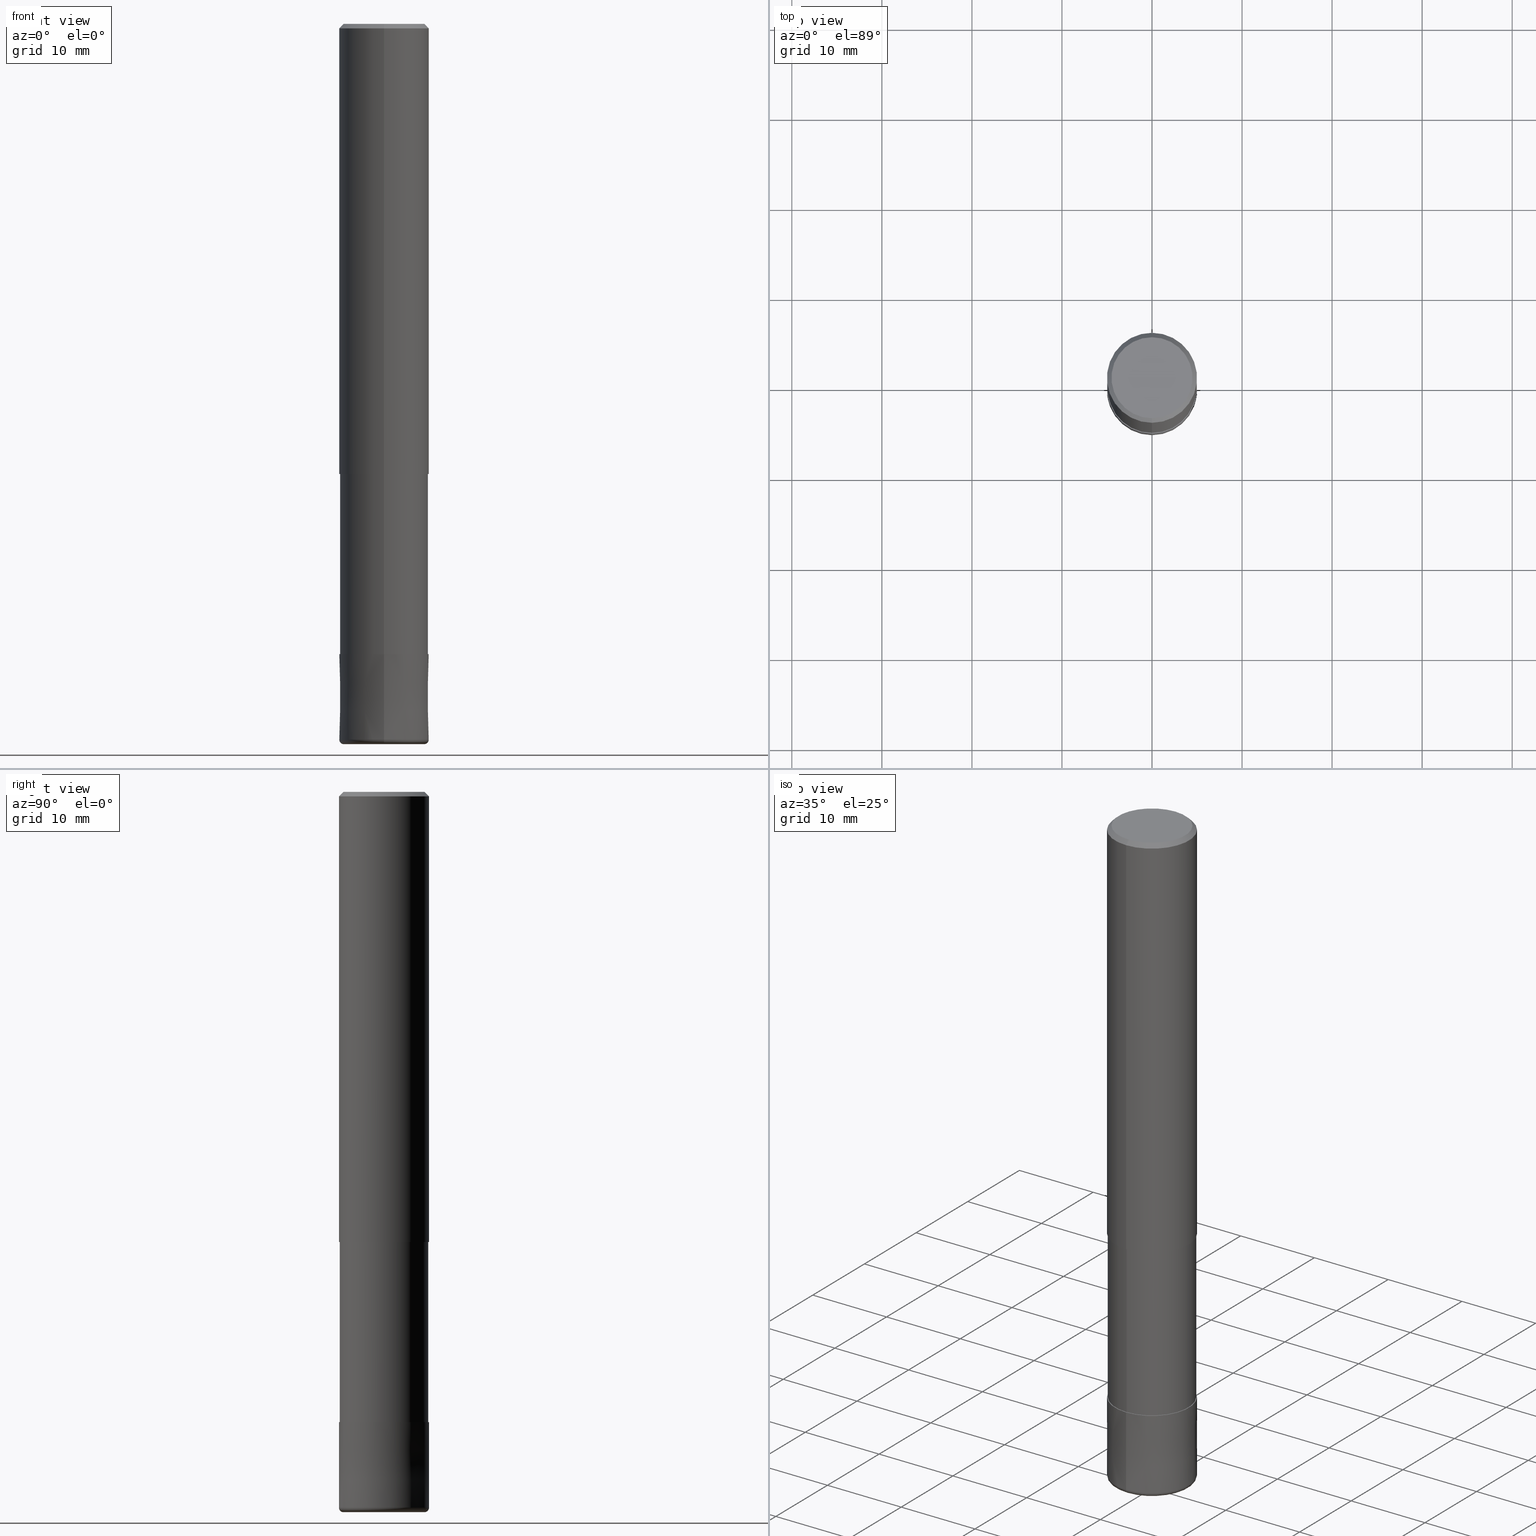
[diagram: canonical four-view strip — front | top / right | iso, engineering-drawing reading convention]
A machine part, canonical four-view strip (front | top / right | iso — engineering-drawing reading convention). The complete STEP part file that produces these views, byte-faithful:
ISO-10303-21;
HEADER;
FILE_DESCRIPTION(('no description'),'unknown implementation level');
FILE_NAME('CRRS4100-05-30-Huellk.stp','  ',('CIMSOURCE GmbH'),('CADClick - KiM GmbH - www.kimweb.de'),'unknown preprocess','ACIS','unknown authorization');
FILE_SCHEMA(('automotive_design'));
ENDSEC;
DATA;
#1=MECHANICAL_DESIGN_GEOMETRIC_PRESENTATION_REPRESENTATION(' ',(#14,#15,#16,#17,#18,#19,#20,#21,#22,#23,#24,#25,#26,#27,#28,#29,#30,#31,#32,#33,#34,#35,#36,#37,#38,#39,#40,#41,#42,#43,#44,#45,#46,#47,#48,#49,#50,#51,#52,#53,#54,#55,#56,#57,#58,#59,#60,#61,#62,#63,#64,#65,#66,#67,#68,#69,#70,#71,#72),#10);
#2=PRODUCT_DEFINITION_CONTEXT('',#73,'design');
#3=APPLICATION_PROTOCOL_DEFINITION('INTERNATIONAL STANDARD','automotive_design',1994,#73);
#4=PRODUCT_CATEGORY_RELATIONSHIP('NONE','NONE',#74,#75);
#5=SHAPE_DEFINITION_REPRESENTATION(#76,#77);
#6=PRODUCT_DEFINITION_CONTEXT('',#78,'design');
#7=APPLICATION_PROTOCOL_DEFINITION('INTERNATIONAL STANDARD','automotive_design',1994,#78);
#8=PRODUCT_CATEGORY_RELATIONSHIP('NONE','NONE',#79,#80);
#9=SHAPE_DEFINITION_REPRESENTATION(#81,#82);
#10= (GEOMETRIC_REPRESENTATION_CONTEXT(3)GLOBAL_UNCERTAINTY_ASSIGNED_CONTEXT((#85))GLOBAL_UNIT_ASSIGNED_CONTEXT((#87,#88,#89))REPRESENTATION_CONTEXT('NONE','WORKSPACE'));
#14=STYLED_ITEM('',(#91),#92);
#15=STYLED_ITEM('',(#93),#94);
#16=STYLED_ITEM('',(#95),#96);
#17=STYLED_ITEM('',(#97),#98);
#18=STYLED_ITEM('',(#99),#100);
#19=STYLED_ITEM('',(#101),#102);
#20=STYLED_ITEM('',(#103),#104);
#21=STYLED_ITEM('',(#105),#106);
#22=STYLED_ITEM('',(#107),#108);
#23=STYLED_ITEM('',(#109),#110);
#24=STYLED_ITEM('',(#111),#112);
#25=STYLED_ITEM('',(#113),#114);
#26=STYLED_ITEM('',(#115),#116);
#27=STYLED_ITEM('',(#117),#118);
#28=STYLED_ITEM('',(#119),#120);
#29=STYLED_ITEM('',(#121),#122);
#30=STYLED_ITEM('',(#123),#124);
#31=STYLED_ITEM('',(#125),#126);
#32=STYLED_ITEM('',(#127),#128);
#33=STYLED_ITEM('',(#129),#130);
#34=STYLED_ITEM('',(#131),#132);
#35=STYLED_ITEM('',(#133),#134);
#36=STYLED_ITEM('',(#135),#136);
#37=STYLED_ITEM('',(#137),#138);
#38=STYLED_ITEM('',(#139),#140);
#39=STYLED_ITEM('',(#141),#142);
#40=STYLED_ITEM('',(#143),#144);
#41=STYLED_ITEM('',(#145),#146);
#42=STYLED_ITEM('',(#147),#148);
#43=STYLED_ITEM('',(#149),#150);
#44=STYLED_ITEM('',(#151),#152);
#45=STYLED_ITEM('',(#153),#154);
#46=STYLED_ITEM('',(#155),#156);
#47=STYLED_ITEM('',(#157),#158);
#48=STYLED_ITEM('',(#159),#160);
#49=STYLED_ITEM('',(#161),#162);
#50=STYLED_ITEM('',(#163),#164);
#51=STYLED_ITEM('',(#165),#166);
#52=STYLED_ITEM('',(#167),#168);
#53=STYLED_ITEM('',(#169),#170);
#54=STYLED_ITEM('',(#171),#172);
#55=STYLED_ITEM('',(#173),#174);
#56=STYLED_ITEM('',(#175),#176);
#57=STYLED_ITEM('',(#177),#178);
#58=STYLED_ITEM('',(#179),#180);
#59=STYLED_ITEM('',(#181),#182);
#60=STYLED_ITEM('',(#183),#184);
#61=STYLED_ITEM('',(#185),#186);
#62=STYLED_ITEM('',(#187),#188);
#63=STYLED_ITEM('',(#189),#190);
#64=STYLED_ITEM('',(#191),#192);
#65=STYLED_ITEM('',(#193),#194);
#66=STYLED_ITEM('',(#195),#196);
#67=STYLED_ITEM('',(#197),#198);
#68=STYLED_ITEM('',(#199),#200);
#69=STYLED_ITEM('',(#201),#202);
#70=STYLED_ITEM('',(#203),#204);
#71=STYLED_ITEM('',(#205),#206);
#72=STYLED_ITEM('',(#207),#208);
#73=APPLICATION_CONTEXT(' ');
#74=PRODUCT_CATEGORY('part','NONE');
#75=PRODUCT_RELATED_PRODUCT_CATEGORY('detail',' ',(#209));
#76=PRODUCT_DEFINITION_SHAPE('NONE','NONE',#210);
#77=ADVANCED_BREP_SHAPE_REPRESENTATION('1',(#134,#211),#10);
#78=APPLICATION_CONTEXT(' ');
#79=PRODUCT_CATEGORY('part','NONE');
#80=PRODUCT_RELATED_PRODUCT_CATEGORY('detail',' ',(#212));
#81=PRODUCT_DEFINITION_SHAPE('NONE','NONE',#213);
#82=ADVANCED_BREP_SHAPE_REPRESENTATION('2',(#162,#214),#10);
#85=UNCERTAINTY_MEASURE_WITH_UNIT(LENGTH_MEASURE(1.0E-006),#87,'','');
#87= (CONVERSION_BASED_UNIT('MILLIMETRE',#217)LENGTH_UNIT()NAMED_UNIT(#220));
#88= (NAMED_UNIT(#222)PLANE_ANGLE_UNIT()SI_UNIT($,.RADIAN.));
#89= (NAMED_UNIT(#222)SOLID_ANGLE_UNIT()SI_UNIT($,.STERADIAN.));
#91=PRESENTATION_STYLE_ASSIGNMENT((#228));
#92=EDGE_CURVE('',#206,#102,#229,.T.);
#93=PRESENTATION_STYLE_ASSIGNMENT((#230));
#94=ADVANCED_FACE('',(#231),#232,.T.);
#95=PRESENTATION_STYLE_ASSIGNMENT((#233));
#96=EDGE_CURVE('',#172,#140,#234,.T.);
#97=PRESENTATION_STYLE_ASSIGNMENT((#235));
#98=VERTEX_POINT('',#236);
#99=PRESENTATION_STYLE_ASSIGNMENT((#237));
#100=VERTEX_POINT('',#238);
#101=PRESENTATION_STYLE_ASSIGNMENT((#239));
#102=VERTEX_POINT('',#240);
#103=PRESENTATION_STYLE_ASSIGNMENT((#241));
#104=VERTEX_POINT('',#242);
#105=PRESENTATION_STYLE_ASSIGNMENT((#243));
#106=ADVANCED_FACE('',(#244),#245,.T.);
#107=PRESENTATION_STYLE_ASSIGNMENT((#246));
#108=VERTEX_POINT('',#247);
#109=PRESENTATION_STYLE_ASSIGNMENT((#248));
#110=EDGE_CURVE('',#160,#104,#249,.T.);
#111=PRESENTATION_STYLE_ASSIGNMENT((#250));
#112=EDGE_CURVE('',#104,#160,#251,.T.);
#113=PRESENTATION_STYLE_ASSIGNMENT((#252));
#114=VERTEX_POINT('',#253);
#115=PRESENTATION_STYLE_ASSIGNMENT((#254));
#116=EDGE_CURVE('',#104,#208,#255,.T.);
#117=PRESENTATION_STYLE_ASSIGNMENT((#256));
#118=ADVANCED_FACE('',(#257),#258,.T.);
#119=PRESENTATION_STYLE_ASSIGNMENT((#259));
#120=EDGE_CURVE('',#208,#98,#260,.T.);
#121=PRESENTATION_STYLE_ASSIGNMENT((#261));
#122=ADVANCED_FACE('',(#262),#263,.T.);
#123=PRESENTATION_STYLE_ASSIGNMENT((#264));
#124=EDGE_CURVE('',#130,#108,#265,.T.);
#125=PRESENTATION_STYLE_ASSIGNMENT((#266));
#126=ADVANCED_FACE('',(#267),#268,.T.);
#127=PRESENTATION_STYLE_ASSIGNMENT((#269));
#128=VERTEX_POINT('',#270);
#129=PRESENTATION_STYLE_ASSIGNMENT((#271));
#130=VERTEX_POINT('',#272);
#131=PRESENTATION_STYLE_ASSIGNMENT((#273));
#132=EDGE_CURVE('',#136,#128,#274,.T.);
#133=PRESENTATION_STYLE_ASSIGNMENT((#275));
#134=MANIFOLD_SOLID_BREP('1',#276);
#135=PRESENTATION_STYLE_ASSIGNMENT((#277));
#136=VERTEX_POINT('',#278);
#137=PRESENTATION_STYLE_ASSIGNMENT((#279));
#138=VERTEX_POINT('',#280);
#139=PRESENTATION_STYLE_ASSIGNMENT((#281));
#140=VERTEX_POINT('',#282);
#141=PRESENTATION_STYLE_ASSIGNMENT((#283));
#142=EDGE_CURVE('',#108,#130,#284,.T.);
#143=PRESENTATION_STYLE_ASSIGNMENT((#285));
#144=ADVANCED_FACE('',(#286),#287,.T.);
#145=PRESENTATION_STYLE_ASSIGNMENT((#288));
#146=ADVANCED_FACE('',(#289),#290,.T.);
#147=PRESENTATION_STYLE_ASSIGNMENT((#291));
#148=EDGE_CURVE('',#130,#138,#292,.T.);
#149=PRESENTATION_STYLE_ASSIGNMENT((#293));
#150=EDGE_CURVE('',#100,#158,#294,.T.);
#151=PRESENTATION_STYLE_ASSIGNMENT((#295));
#152=EDGE_CURVE('',#102,#208,#296,.T.);
#153=PRESENTATION_STYLE_ASSIGNMENT((#297));
#154=EDGE_CURVE('',#140,#172,#298,.T.);
#155=PRESENTATION_STYLE_ASSIGNMENT((#299));
#156=EDGE_CURVE('',#128,#172,#300,.T.);
#157=PRESENTATION_STYLE_ASSIGNMENT((#301));
#158=VERTEX_POINT('',#302);
#159=PRESENTATION_STYLE_ASSIGNMENT((#303));
#160=VERTEX_POINT('',#304);
#161=PRESENTATION_STYLE_ASSIGNMENT((#305));
#162=MANIFOLD_SOLID_BREP('2',#306);
#163=PRESENTATION_STYLE_ASSIGNMENT((#307));
#164=ADVANCED_FACE('',(#308),#309,.T.);
#165=PRESENTATION_STYLE_ASSIGNMENT((#310));
#166=EDGE_CURVE('',#138,#100,#311,.T.);
#167=PRESENTATION_STYLE_ASSIGNMENT((#312));
#168=ADVANCED_FACE('',(#313),#314,.T.);
#169=PRESENTATION_STYLE_ASSIGNMENT((#315));
#170=EDGE_CURVE('',#114,#108,#316,.T.);
#171=PRESENTATION_STYLE_ASSIGNMENT((#317));
#172=VERTEX_POINT('',#318);
#173=PRESENTATION_STYLE_ASSIGNMENT((#319));
#174=EDGE_CURVE('',#138,#114,#320,.T.);
#175=PRESENTATION_STYLE_ASSIGNMENT((#321));
#176=ADVANCED_FACE('',(#322),#323,.T.);
#177=PRESENTATION_STYLE_ASSIGNMENT((#324));
#178=EDGE_CURVE('',#158,#100,#325,.T.);
#179=PRESENTATION_STYLE_ASSIGNMENT((#326));
#180=EDGE_CURVE('',#114,#138,#327,.T.);
#181=PRESENTATION_STYLE_ASSIGNMENT((#328));
#182=EDGE_CURVE('',#98,#208,#329,.T.);
#183=PRESENTATION_STYLE_ASSIGNMENT((#330));
#184=ADVANCED_FACE('',(#331,#332),#333,.T.);
#185=PRESENTATION_STYLE_ASSIGNMENT((#334));
#186=ADVANCED_FACE('',(#335),#336,.T.);
#187=PRESENTATION_STYLE_ASSIGNMENT((#337));
#188=EDGE_CURVE('',#98,#160,#338,.T.);
#189=PRESENTATION_STYLE_ASSIGNMENT((#339));
#190=EDGE_CURVE('',#158,#114,#340,.T.);
#191=PRESENTATION_STYLE_ASSIGNMENT((#341));
#192=EDGE_CURVE('',#102,#206,#342,.T.);
#193=PRESENTATION_STYLE_ASSIGNMENT((#343));
#194=ADVANCED_FACE('',(#344),#345,.T.);
#195=PRESENTATION_STYLE_ASSIGNMENT((#346));
#196=ADVANCED_FACE('',(#347),#348,.T.);
#197=PRESENTATION_STYLE_ASSIGNMENT((#349));
#198=ADVANCED_FACE('',(#350),#351,.T.);
#199=PRESENTATION_STYLE_ASSIGNMENT((#352));
#200=EDGE_CURVE('',#140,#136,#353,.T.);
#201=PRESENTATION_STYLE_ASSIGNMENT((#354));
#202=EDGE_CURVE('',#98,#206,#355,.T.);
#203=PRESENTATION_STYLE_ASSIGNMENT((#356));
#204=EDGE_CURVE('',#128,#136,#357,.T.);
#205=PRESENTATION_STYLE_ASSIGNMENT((#358));
#206=VERTEX_POINT('',#359);
#207=PRESENTATION_STYLE_ASSIGNMENT((#360));
#208=VERTEX_POINT('',#361);
#209=PRODUCT('1','1','PART-1-DESC',(#362));
#210=PRODUCT_DEFINITION('NONE','NONE',#363,#2);
#211=AXIS2_PLACEMENT_3D('',#364,#365,#366);
#212=PRODUCT('2','2','PART-2-DESC',(#367));
#213=PRODUCT_DEFINITION('NONE','NONE',#368,#6);
#214=AXIS2_PLACEMENT_3D('',#369,#370,#371);
#217=LENGTH_MEASURE_WITH_UNIT(LENGTH_MEASURE(1.0),#372);
#220=DIMENSIONAL_EXPONENTS(1.0,0.0,0.0,0.0,0.0,0.0,0.0);
#222=DIMENSIONAL_EXPONENTS(0.0,0.0,0.0,0.0,0.0,0.0,0.0);
#228=CURVE_STYLE('',#373,POSITIVE_LENGTH_MEASURE(1.0E-006),#374);
#229=CIRCLE('',#375,4.5);
#230=SURFACE_STYLE_USAGE(.BOTH.,#376);
#231=FACE_OUTER_BOUND('',#377,.T.);
#232=TOROIDAL_SURFACE('',#378,4.5,0.499999999999995);
#233=CURVE_STYLE('',#379,POSITIVE_LENGTH_MEASURE(1.0E-006),#380);
#234=CIRCLE('',#381,4.90995);
#235=POINT_STYLE(' ',#382,POSITIVE_LENGTH_MEASURE(1.0E-006),#383);
#236=CARTESIAN_POINT('',(6.12303176911189E-016,-5.0,-79.5));
#237=POINT_STYLE(' ',#384,POSITIVE_LENGTH_MEASURE(1.0E-006),#385);
#238=CARTESIAN_POINT('',(0.0,5.0,-50.0));
#239=POINT_STYLE(' ',#386,POSITIVE_LENGTH_MEASURE(1.0E-006),#387);
#240=CARTESIAN_POINT('',(0.0,4.5,-80.0));
#241=POINT_STYLE(' ',#388,POSITIVE_LENGTH_MEASURE(1.0E-006),#389);
#242=CARTESIAN_POINT('',(0.0,4.9999,-70.0));
#243=SURFACE_STYLE_USAGE(.BOTH.,#390);
#244=FACE_OUTER_BOUND('',#391,.T.);
#245=CONICAL_SURFACE('',#392,4.99995,1.05263157890604E-005);
#246=POINT_STYLE(' ',#393,POSITIVE_LENGTH_MEASURE(1.0E-006),#394);
#247=CARTESIAN_POINT('',(5.5107285922007E-016,-4.5,0.0));
#248=CURVE_STYLE('',#395,POSITIVE_LENGTH_MEASURE(1.0E-006),#396);
#249=CIRCLE('',#397,4.9999);
#250=CURVE_STYLE('',#398,POSITIVE_LENGTH_MEASURE(1.0E-006),#399);
#251=CIRCLE('',#400,4.9999);
#252=POINT_STYLE(' ',#401,POSITIVE_LENGTH_MEASURE(1.0E-006),#402);
#253=CARTESIAN_POINT('',(6.12303176911189E-016,-5.0,-0.5));
#254=CURVE_STYLE('',#403,POSITIVE_LENGTH_MEASURE(1.0E-006),#404);
#255=LINE('',#405,#406);
#256=SURFACE_STYLE_USAGE(.BOTH.,#407);
#257=FACE_OUTER_BOUND('',#408,.T.);
#258=PLANE('',#409);
#259=CURVE_STYLE('',#410,POSITIVE_LENGTH_MEASURE(1.0E-006),#411);
#260=CIRCLE('',#412,5.0);
#261=SURFACE_STYLE_USAGE(.BOTH.,#413);
#262=FACE_OUTER_BOUND('',#414,.T.);
#263=PLANE('',#415);
#264=CURVE_STYLE('',#416,POSITIVE_LENGTH_MEASURE(1.0E-006),#417);
#265=CIRCLE('',#418,4.5);
#266=SURFACE_STYLE_USAGE(.BOTH.,#419);
#267=FACE_OUTER_BOUND('',#420,.T.);
#268=CYLINDRICAL_SURFACE('',#421,4.90995);
#269=POINT_STYLE(' ',#422,POSITIVE_LENGTH_MEASURE(1.0E-006),#423);
#270=CARTESIAN_POINT('',(6.01275596695018E-016,-4.90995,-70.0));
#271=POINT_STYLE(' ',#424,POSITIVE_LENGTH_MEASURE(1.0E-006),#425);
#272=CARTESIAN_POINT('',(0.0,4.5,0.0));
#273=CURVE_STYLE('',#426,POSITIVE_LENGTH_MEASURE(1.0E-006),#427);
#274=CIRCLE('',#428,4.90995);
#275=SURFACE_STYLE_USAGE(.BOTH.,#429);
#276=CLOSED_SHELL('',(#186,#176,#168,#184,#164,#198,#194,#126,#122));
#277=POINT_STYLE(' ',#430,POSITIVE_LENGTH_MEASURE(1.0E-006),#431);
#278=CARTESIAN_POINT('',(0.0,4.90995,-70.0));
#279=POINT_STYLE(' ',#432,POSITIVE_LENGTH_MEASURE(1.0E-006),#433);
#280=CARTESIAN_POINT('',(0.0,5.0,-0.5));
#281=POINT_STYLE(' ',#434,POSITIVE_LENGTH_MEASURE(1.0E-006),#435);
#282=CARTESIAN_POINT('',(0.0,4.90995,-50.0));
#283=CURVE_STYLE('',#436,POSITIVE_LENGTH_MEASURE(1.0E-006),#437);
#284=CIRCLE('',#438,4.5);
#285=SURFACE_STYLE_USAGE(.BOTH.,#439);
#286=FACE_OUTER_BOUND('',#440,.T.);
#287=CONICAL_SURFACE('',#441,4.99995,1.05263157890604E-005);
#288=SURFACE_STYLE_USAGE(.BOTH.,#442);
#289=FACE_OUTER_BOUND('',#443,.T.);
#290=PLANE('',#444);
#291=CURVE_STYLE('',#445,POSITIVE_LENGTH_MEASURE(1.0E-006),#446);
#292=LINE('',#447,#448);
#293=CURVE_STYLE('',#449,POSITIVE_LENGTH_MEASURE(1.0E-006),#450);
#294=CIRCLE('',#451,5.0);
#295=CURVE_STYLE('',#452,POSITIVE_LENGTH_MEASURE(1.0E-006),#453);
#296=CIRCLE('',#454,0.499999999999995);
#297=CURVE_STYLE('',#455,POSITIVE_LENGTH_MEASURE(1.0E-006),#456);
#298=CIRCLE('',#457,4.90995);
#299=CURVE_STYLE('',#458,POSITIVE_LENGTH_MEASURE(1.0E-006),#459);
#300=LINE('',#460,#461);
#301=POINT_STYLE(' ',#462,POSITIVE_LENGTH_MEASURE(1.0E-006),#463);
#302=CARTESIAN_POINT('',(6.12303176911189E-016,-5.0,-50.0));
#303=POINT_STYLE(' ',#464,POSITIVE_LENGTH_MEASURE(1.0E-006),#465);
#304=CARTESIAN_POINT('',(6.1229093084765E-016,-4.9999,-70.0));
#305=SURFACE_STYLE_USAGE(.BOTH.,#466);
#306=CLOSED_SHELL('',(#94,#106,#118,#144,#196,#146));
#307=SURFACE_STYLE_USAGE(.BOTH.,#467);
#308=FACE_OUTER_BOUND('',#468,.T.);
#309=PLANE('',#469);
#310=CURVE_STYLE('',#470,POSITIVE_LENGTH_MEASURE(1.0E-006),#471);
#311=LINE('',#472,#473);
#312=SURFACE_STYLE_USAGE(.BOTH.,#474);
#313=FACE_OUTER_BOUND('',#475,.T.);
#314=CONICAL_SURFACE('',#476,4.75,0.785398163397448);
#315=CURVE_STYLE('',#477,POSITIVE_LENGTH_MEASURE(1.0E-006),#478);
#316=LINE('',#479,#480);
#317=POINT_STYLE(' ',#481,POSITIVE_LENGTH_MEASURE(1.0E-006),#482);
#318=CARTESIAN_POINT('',(6.01275596695018E-016,-4.90995,-50.0));
#319=CURVE_STYLE('',#483,POSITIVE_LENGTH_MEASURE(1.0E-006),#484);
#320=CIRCLE('',#485,5.0);
#321=SURFACE_STYLE_USAGE(.BOTH.,#486);
#322=FACE_OUTER_BOUND('',#487,.T.);
#323=CYLINDRICAL_SURFACE('',#488,5.0);
#324=CURVE_STYLE('',#489,POSITIVE_LENGTH_MEASURE(1.0E-006),#490);
#325=CIRCLE('',#491,5.0);
#326=CURVE_STYLE('',#492,POSITIVE_LENGTH_MEASURE(1.0E-006),#493);
#327=CIRCLE('',#494,5.0);
#328=CURVE_STYLE('',#495,POSITIVE_LENGTH_MEASURE(1.0E-006),#496);
#329=CIRCLE('',#497,5.0);
#330=SURFACE_STYLE_USAGE(.BOTH.,#498);
#331=FACE_OUTER_BOUND('',#499,.T.);
#332=FACE_BOUND('',#500,.T.);
#333=PLANE('',#501);
#334=SURFACE_STYLE_USAGE(.BOTH.,#502);
#335=FACE_OUTER_BOUND('',#503,.T.);
#336=CYLINDRICAL_SURFACE('',#504,4.90995);
#337=CURVE_STYLE('',#505,POSITIVE_LENGTH_MEASURE(1.0E-006),#506);
#338=LINE('',#507,#508);
#339=CURVE_STYLE('',#509,POSITIVE_LENGTH_MEASURE(1.0E-006),#510);
#340=LINE('',#511,#512);
#341=CURVE_STYLE('',#513,POSITIVE_LENGTH_MEASURE(1.0E-006),#514);
#342=CIRCLE('',#515,4.5);
#343=SURFACE_STYLE_USAGE(.BOTH.,#516);
#344=FACE_OUTER_BOUND('',#517,.T.);
#345=CYLINDRICAL_SURFACE('',#518,5.0);
#346=SURFACE_STYLE_USAGE(.BOTH.,#519);
#347=FACE_OUTER_BOUND('',#520,.T.);
#348=TOROIDAL_SURFACE('',#521,4.5,0.499999999999995);
#349=SURFACE_STYLE_USAGE(.BOTH.,#522);
#350=FACE_OUTER_BOUND('',#523,.T.);
#351=CONICAL_SURFACE('',#524,4.75,0.785398163397448);
#352=CURVE_STYLE('',#525,POSITIVE_LENGTH_MEASURE(1.0E-006),#526);
#353=LINE('',#527,#528);
#354=CURVE_STYLE('',#529,POSITIVE_LENGTH_MEASURE(1.0E-006),#530);
#355=CIRCLE('',#531,0.499999999999995);
#356=CURVE_STYLE('',#532,POSITIVE_LENGTH_MEASURE(1.0E-006),#533);
#357=CIRCLE('',#534,4.90995);
#358=POINT_STYLE(' ',#535,POSITIVE_LENGTH_MEASURE(1.0E-006),#536);
#359=CARTESIAN_POINT('',(5.5107285922007E-016,-4.5,-80.0));
#360=POINT_STYLE(' ',#537,POSITIVE_LENGTH_MEASURE(1.0E-006),#538);
#361=CARTESIAN_POINT('',(0.0,5.0,-79.5));
#362=PRODUCT_CONTEXT('',#73,'mechanical');
#363=PRODUCT_DEFINITION_FORMATION_WITH_SPECIFIED_SOURCE(' ','NONE',#209,.NOT_KNOWN.);
#364=CARTESIAN_POINT('',(0.0,0.0,0.0));
#365=DIRECTION('',(0.0,0.0,1.0));
#366=DIRECTION('',(1.0,0.0,0.0));
#367=PRODUCT_CONTEXT('',#78,'mechanical');
#368=PRODUCT_DEFINITION_FORMATION_WITH_SPECIFIED_SOURCE(' ','NONE',#212,.NOT_KNOWN.);
#369=CARTESIAN_POINT('',(0.0,0.0,0.0));
#370=DIRECTION('',(0.0,0.0,1.0));
#371=DIRECTION('',(1.0,0.0,0.0));
#372= (NAMED_UNIT(#220)LENGTH_UNIT()SI_UNIT(.MILLI.,.METRE.));
#373=DRAUGHTING_PRE_DEFINED_CURVE_FONT('continuous');
#374=COLOUR_RGB('',0.800000011920929,0.800000011920929,0.800000011920929);
#375=AXIS2_PLACEMENT_3D('',#540,#541,#542);
#376=SURFACE_SIDE_STYLE('',(#543));
#377=EDGE_LOOP('',(#544,#545,#546,#547));
#378=AXIS2_PLACEMENT_3D('',#548,#549,#550);
#379=DRAUGHTING_PRE_DEFINED_CURVE_FONT('continuous');
#380=COLOUR_RGB('',0.498039215803146,0.498039215803146,0.498039215803146);
#381=AXIS2_PLACEMENT_3D('',#551,#552,#553);
#382=PRE_DEFINED_MARKER('');
#383=COLOUR_RGB('',0.800000011920929,0.800000011920929,0.800000011920929);
#384=PRE_DEFINED_MARKER('');
#385=COLOUR_RGB('',0.498039215803146,0.498039215803146,0.498039215803146);
#386=PRE_DEFINED_MARKER('');
#387=COLOUR_RGB('',0.800000011920929,0.800000011920929,0.800000011920929);
#388=PRE_DEFINED_MARKER('');
#389=COLOUR_RGB('',0.800000011920929,0.800000011920929,0.800000011920929);
#390=SURFACE_SIDE_STYLE('',(#554));
#391=EDGE_LOOP('',(#555,#556,#557,#558));
#392=AXIS2_PLACEMENT_3D('',#559,#560,#561);
#393=PRE_DEFINED_MARKER('');
#394=COLOUR_RGB('',0.498039215803146,0.498039215803146,0.498039215803146);
#395=DRAUGHTING_PRE_DEFINED_CURVE_FONT('continuous');
#396=COLOUR_RGB('',0.800000011920929,0.800000011920929,0.800000011920929);
#397=AXIS2_PLACEMENT_3D('',#562,#563,#564);
#398=DRAUGHTING_PRE_DEFINED_CURVE_FONT('continuous');
#399=COLOUR_RGB('',0.800000011920929,0.800000011920929,0.800000011920929);
#400=AXIS2_PLACEMENT_3D('',#565,#566,#567);
#401=PRE_DEFINED_MARKER('');
#402=COLOUR_RGB('',0.498039215803146,0.498039215803146,0.498039215803146);
#403=DRAUGHTING_PRE_DEFINED_CURVE_FONT('continuous');
#404=COLOUR_RGB('',0.800000011920929,0.800000011920929,0.800000011920929);
#405=CARTESIAN_POINT('',(-6.1229705387942E-016,4.99995,-74.75));
#406=VECTOR('',#568,1.0);
#407=SURFACE_SIDE_STYLE('',(#569));
#408=EDGE_LOOP('',(#570,#571));
#409=AXIS2_PLACEMENT_3D('',#572,#573,#574);
#410=DRAUGHTING_PRE_DEFINED_CURVE_FONT('continuous');
#411=COLOUR_RGB('',0.800000011920929,0.800000011920929,0.800000011920929);
#412=AXIS2_PLACEMENT_3D('',#575,#576,#577);
#413=SURFACE_SIDE_STYLE('',(#578));
#414=EDGE_LOOP('',(#579,#580));
#415=AXIS2_PLACEMENT_3D('',#581,#582,#583);
#416=DRAUGHTING_PRE_DEFINED_CURVE_FONT('continuous');
#417=COLOUR_RGB('',0.498039215803146,0.498039215803146,0.498039215803146);
#418=AXIS2_PLACEMENT_3D('',#584,#585,#586);
#419=SURFACE_SIDE_STYLE('',(#587));
#420=EDGE_LOOP('',(#588,#589,#590,#591));
#421=AXIS2_PLACEMENT_3D('',#592,#593,#594);
#422=PRE_DEFINED_MARKER('');
#423=COLOUR_RGB('',0.498039215803146,0.498039215803146,0.498039215803146);
#424=PRE_DEFINED_MARKER('');
#425=COLOUR_RGB('',0.498039215803146,0.498039215803146,0.498039215803146);
#426=DRAUGHTING_PRE_DEFINED_CURVE_FONT('continuous');
#427=COLOUR_RGB('',0.498039215803146,0.498039215803146,0.498039215803146);
#428=AXIS2_PLACEMENT_3D('',#595,#596,#597);
#429=SURFACE_SIDE_STYLE('',(#598));
#430=PRE_DEFINED_MARKER('');
#431=COLOUR_RGB('',0.498039215803146,0.498039215803146,0.498039215803146);
#432=PRE_DEFINED_MARKER('');
#433=COLOUR_RGB('',0.498039215803146,0.498039215803146,0.498039215803146);
#434=PRE_DEFINED_MARKER('');
#435=COLOUR_RGB('',0.498039215803146,0.498039215803146,0.498039215803146);
#436=DRAUGHTING_PRE_DEFINED_CURVE_FONT('continuous');
#437=COLOUR_RGB('',0.498039215803146,0.498039215803146,0.498039215803146);
#438=AXIS2_PLACEMENT_3D('',#599,#600,#601);
#439=SURFACE_SIDE_STYLE('',(#602));
#440=EDGE_LOOP('',(#603,#604,#605,#606));
#441=AXIS2_PLACEMENT_3D('',#607,#608,#609);
#442=SURFACE_SIDE_STYLE('',(#610));
#443=EDGE_LOOP('',(#611,#612));
#444=AXIS2_PLACEMENT_3D('',#613,#614,#615);
#445=DRAUGHTING_PRE_DEFINED_CURVE_FONT('continuous');
#446=COLOUR_RGB('',0.498039215803146,0.498039215803146,0.498039215803146);
#447=CARTESIAN_POINT('',(-5.81688018065629E-016,4.75,-0.25));
#448=VECTOR('',#616,1.0);
#449=DRAUGHTING_PRE_DEFINED_CURVE_FONT('continuous');
#450=COLOUR_RGB('',0.498039215803146,0.498039215803146,0.498039215803146);
#451=AXIS2_PLACEMENT_3D('',#617,#618,#619);
#452=DRAUGHTING_PRE_DEFINED_CURVE_FONT('continuous');
#453=COLOUR_RGB('',0.800000011920929,0.800000011920929,0.800000011920929);
#454=AXIS2_PLACEMENT_3D('',#620,#621,#622);
#455=DRAUGHTING_PRE_DEFINED_CURVE_FONT('continuous');
#456=COLOUR_RGB('',0.498039215803146,0.498039215803146,0.498039215803146);
#457=AXIS2_PLACEMENT_3D('',#623,#624,#625);
#458=DRAUGHTING_PRE_DEFINED_CURVE_FONT('continuous');
#459=COLOUR_RGB('',0.498039215803146,0.498039215803146,0.498039215803146);
#460=CARTESIAN_POINT('',(6.01275596695018E-016,-4.90995,-60.0));
#461=VECTOR('',#626,1.0);
#462=PRE_DEFINED_MARKER('');
#463=COLOUR_RGB('',0.498039215803146,0.498039215803146,0.498039215803146);
#464=PRE_DEFINED_MARKER('');
#465=COLOUR_RGB('',0.800000011920929,0.800000011920929,0.800000011920929);
#466=SURFACE_SIDE_STYLE('',(#627));
#467=SURFACE_SIDE_STYLE('',(#628));
#468=EDGE_LOOP('',(#629,#630));
#469=AXIS2_PLACEMENT_3D('',#631,#632,#633);
#470=DRAUGHTING_PRE_DEFINED_CURVE_FONT('continuous');
#471=COLOUR_RGB('',0.498039215803146,0.498039215803146,0.498039215803146);
#472=CARTESIAN_POINT('',(-6.12303176911189E-016,5.0,-25.25));
#473=VECTOR('',#634,1.0);
#474=SURFACE_SIDE_STYLE('',(#635));
#475=EDGE_LOOP('',(#636,#637,#638,#639));
#476=AXIS2_PLACEMENT_3D('',#640,#641,#642);
#477=DRAUGHTING_PRE_DEFINED_CURVE_FONT('continuous');
#478=COLOUR_RGB('',0.498039215803146,0.498039215803146,0.498039215803146);
#479=CARTESIAN_POINT('',(5.81688018065629E-016,-4.75,-0.25));
#480=VECTOR('',#643,1.0);
#481=PRE_DEFINED_MARKER('');
#482=COLOUR_RGB('',0.498039215803146,0.498039215803146,0.498039215803146);
#483=DRAUGHTING_PRE_DEFINED_CURVE_FONT('continuous');
#484=COLOUR_RGB('',0.498039215803146,0.498039215803146,0.498039215803146);
#485=AXIS2_PLACEMENT_3D('',#644,#645,#646);
#486=SURFACE_SIDE_STYLE('',(#647));
#487=EDGE_LOOP('',(#648,#649,#650,#651));
#488=AXIS2_PLACEMENT_3D('',#652,#653,#654);
#489=DRAUGHTING_PRE_DEFINED_CURVE_FONT('continuous');
#490=COLOUR_RGB('',0.498039215803146,0.498039215803146,0.498039215803146);
#491=AXIS2_PLACEMENT_3D('',#655,#656,#657);
#492=DRAUGHTING_PRE_DEFINED_CURVE_FONT('continuous');
#493=COLOUR_RGB('',0.498039215803146,0.498039215803146,0.498039215803146);
#494=AXIS2_PLACEMENT_3D('',#658,#659,#660);
#495=DRAUGHTING_PRE_DEFINED_CURVE_FONT('continuous');
#496=COLOUR_RGB('',0.800000011920929,0.800000011920929,0.800000011920929);
#497=AXIS2_PLACEMENT_3D('',#661,#662,#663);
#498=SURFACE_SIDE_STYLE('',(#664));
#499=EDGE_LOOP('',(#665,#666));
#500=EDGE_LOOP('',(#667,#668));
#501=AXIS2_PLACEMENT_3D('',#669,#670,#671);
#502=SURFACE_SIDE_STYLE('',(#672));
#503=EDGE_LOOP('',(#673,#674,#675,#676));
#504=AXIS2_PLACEMENT_3D('',#677,#678,#679);
#505=DRAUGHTING_PRE_DEFINED_CURVE_FONT('continuous');
#506=COLOUR_RGB('',0.800000011920929,0.800000011920929,0.800000011920929);
#507=CARTESIAN_POINT('',(6.1229705387942E-016,-4.99995,-74.75));
#508=VECTOR('',#680,1.0);
#509=DRAUGHTING_PRE_DEFINED_CURVE_FONT('continuous');
#510=COLOUR_RGB('',0.498039215803146,0.498039215803146,0.498039215803146);
#511=CARTESIAN_POINT('',(6.12303176911189E-016,-5.0,-25.25));
#512=VECTOR('',#681,1.0);
#513=DRAUGHTING_PRE_DEFINED_CURVE_FONT('continuous');
#514=COLOUR_RGB('',0.800000011920929,0.800000011920929,0.800000011920929);
#515=AXIS2_PLACEMENT_3D('',#682,#683,#684);
#516=SURFACE_SIDE_STYLE('',(#685));
#517=EDGE_LOOP('',(#686,#687,#688,#689));
#518=AXIS2_PLACEMENT_3D('',#690,#691,#692);
#519=SURFACE_SIDE_STYLE('',(#693));
#520=EDGE_LOOP('',(#694,#695,#696,#697));
#521=AXIS2_PLACEMENT_3D('',#698,#699,#700);
#522=SURFACE_SIDE_STYLE('',(#701));
#523=EDGE_LOOP('',(#702,#703,#704,#705));
#524=AXIS2_PLACEMENT_3D('',#706,#707,#708);
#525=DRAUGHTING_PRE_DEFINED_CURVE_FONT('continuous');
#526=COLOUR_RGB('',0.498039215803146,0.498039215803146,0.498039215803146);
#527=CARTESIAN_POINT('',(-6.01275596695018E-016,4.90995,-60.0));
#528=VECTOR('',#709,1.0);
#529=DRAUGHTING_PRE_DEFINED_CURVE_FONT('continuous');
#530=COLOUR_RGB('',0.800000011920929,0.800000011920929,0.800000011920929);
#531=AXIS2_PLACEMENT_3D('',#710,#711,#712);
#532=DRAUGHTING_PRE_DEFINED_CURVE_FONT('continuous');
#533=COLOUR_RGB('',0.498039215803146,0.498039215803146,0.498039215803146);
#534=AXIS2_PLACEMENT_3D('',#713,#714,#715);
#535=PRE_DEFINED_MARKER('');
#536=COLOUR_RGB('',0.800000011920929,0.800000011920929,0.800000011920929);
#537=PRE_DEFINED_MARKER('');
#538=COLOUR_RGB('',0.800000011920929,0.800000011920929,0.800000011920929);
#540=CARTESIAN_POINT('',(0.0,0.0,-80.0));
#541=DIRECTION('',(0.0,0.0,-1.0));
#542=DIRECTION('',(0.0,1.0,0.0));
#543=SURFACE_STYLE_FILL_AREA(#716);
#544=ORIENTED_EDGE('',*,*,#202,.F.);
#545=ORIENTED_EDGE('',*,*,#182,.T.);
#546=ORIENTED_EDGE('',*,*,#152,.F.);
#547=ORIENTED_EDGE('',*,*,#92,.F.);
#548=CARTESIAN_POINT('',(0.0,0.0,-79.5));
#549=DIRECTION('',(0.0,0.0,-1.0));
#550=DIRECTION('',(0.0,-1.0,0.0));
#551=CARTESIAN_POINT('',(0.0,0.0,-50.0));
#552=DIRECTION('',(0.0,0.0,-1.0));
#553=DIRECTION('',(0.0,1.0,0.0));
#554=SURFACE_STYLE_FILL_AREA(#717);
#555=ORIENTED_EDGE('',*,*,#116,.F.);
#556=ORIENTED_EDGE('',*,*,#112,.T.);
#557=ORIENTED_EDGE('',*,*,#188,.F.);
#558=ORIENTED_EDGE('',*,*,#120,.F.);
#559=CARTESIAN_POINT('',(0.0,0.0,-74.75));
#560=DIRECTION('',(0.0,-0.0,-1.0));
#561=DIRECTION('',(0.0,1.0,0.0));
#562=CARTESIAN_POINT('',(0.0,0.0,-70.0));
#563=DIRECTION('',(0.0,0.0,-1.0));
#564=DIRECTION('',(0.0,1.0,0.0));
#565=CARTESIAN_POINT('',(0.0,0.0,-70.0));
#566=DIRECTION('',(0.0,0.0,-1.0));
#567=DIRECTION('',(0.0,1.0,0.0));
#568=DIRECTION('',(-1.28905931973861E-021,1.0526315788866E-005,-0.999999999944598));
#569=SURFACE_STYLE_FILL_AREA(#718);
#570=ORIENTED_EDGE('',*,*,#112,.F.);
#571=ORIENTED_EDGE('',*,*,#110,.F.);
#572=CARTESIAN_POINT('',(0.0,2.49995,-70.0));
#573=DIRECTION('',(-0.0,0.0,1.0));
#574=DIRECTION('',(0.0,-1.0,0.0));
#575=CARTESIAN_POINT('',(0.0,0.0,-79.5));
#576=DIRECTION('',(0.0,0.0,-1.0));
#577=DIRECTION('',(0.0,1.0,0.0));
#578=SURFACE_STYLE_FILL_AREA(#719);
#579=ORIENTED_EDGE('',*,*,#132,.T.);
#580=ORIENTED_EDGE('',*,*,#204,.T.);
#581=CARTESIAN_POINT('',(0.0,2.454975,-70.0));
#582=DIRECTION('',(0.0,0.0,-1.0));
#583=DIRECTION('',(0.0,1.0,0.0));
#584=CARTESIAN_POINT('',(0.0,0.0,0.0));
#585=DIRECTION('',(0.0,0.0,-1.0));
#586=DIRECTION('',(0.0,1.0,0.0));
#587=SURFACE_STYLE_FILL_AREA(#720);
#588=ORIENTED_EDGE('',*,*,#200,.T.);
#589=ORIENTED_EDGE('',*,*,#204,.F.);
#590=ORIENTED_EDGE('',*,*,#156,.T.);
#591=ORIENTED_EDGE('',*,*,#96,.T.);
#592=CARTESIAN_POINT('',(0.0,0.0,-60.0));
#593=DIRECTION('',(-0.0,-0.0,1.0));
#594=DIRECTION('',(0.0,1.0,0.0));
#595=CARTESIAN_POINT('',(0.0,0.0,-70.0));
#596=DIRECTION('',(0.0,0.0,-1.0));
#597=DIRECTION('',(0.0,1.0,0.0));
#598=SURFACE_STYLE_FILL_AREA(#721);
#599=CARTESIAN_POINT('',(0.0,0.0,0.0));
#600=DIRECTION('',(0.0,0.0,-1.0));
#601=DIRECTION('',(0.0,1.0,0.0));
#602=SURFACE_STYLE_FILL_AREA(#722);
#603=ORIENTED_EDGE('',*,*,#116,.T.);
#604=ORIENTED_EDGE('',*,*,#182,.F.);
#605=ORIENTED_EDGE('',*,*,#188,.T.);
#606=ORIENTED_EDGE('',*,*,#110,.T.);
#607=CARTESIAN_POINT('',(0.0,0.0,-74.75));
#608=DIRECTION('',(0.0,-0.0,-1.0));
#609=DIRECTION('',(0.0,1.0,0.0));
#610=SURFACE_STYLE_FILL_AREA(#723);
#611=ORIENTED_EDGE('',*,*,#192,.T.);
#612=ORIENTED_EDGE('',*,*,#92,.T.);
#613=CARTESIAN_POINT('',(0.0,2.25,-80.0));
#614=DIRECTION('',(0.0,0.0,-1.0));
#615=DIRECTION('',(0.0,1.0,0.0));
#616=DIRECTION('',(-8.65927457071936E-017,0.707106781186548,-0.707106781186548));
#617=CARTESIAN_POINT('',(0.0,0.0,-50.0));
#618=DIRECTION('',(0.0,0.0,-1.0));
#619=DIRECTION('',(0.0,1.0,0.0));
#620=CARTESIAN_POINT('',(-5.5107285922007E-016,4.5,-79.5));
#621=DIRECTION('',(1.0,1.22460635382238E-016,0.0));
#622=DIRECTION('',(-1.22460635382238E-016,1.0,0.0));
#623=CARTESIAN_POINT('',(0.0,0.0,-50.0));
#624=DIRECTION('',(0.0,0.0,-1.0));
#625=DIRECTION('',(0.0,1.0,0.0));
#626=DIRECTION('',(-0.0,-0.0,1.0));
#627=SURFACE_STYLE_FILL_AREA(#724);
#628=SURFACE_STYLE_FILL_AREA(#725);
#629=ORIENTED_EDGE('',*,*,#124,.F.);
#630=ORIENTED_EDGE('',*,*,#142,.F.);
#631=CARTESIAN_POINT('',(0.0,2.25,0.0));
#632=DIRECTION('',(-0.0,0.0,1.0));
#633=DIRECTION('',(0.0,-1.0,0.0));
#634=DIRECTION('',(0.0,0.0,-1.0));
#635=SURFACE_STYLE_FILL_AREA(#726);
#636=ORIENTED_EDGE('',*,*,#148,.F.);
#637=ORIENTED_EDGE('',*,*,#124,.T.);
#638=ORIENTED_EDGE('',*,*,#170,.F.);
#639=ORIENTED_EDGE('',*,*,#174,.F.);
#640=CARTESIAN_POINT('',(0.0,0.0,-0.25));
#641=DIRECTION('',(0.0,-0.0,-1.0));
#642=DIRECTION('',(0.0,1.0,0.0));
#643=DIRECTION('',(-8.65927457071936E-017,0.707106781186548,0.707106781186548));
#644=CARTESIAN_POINT('',(0.0,0.0,-0.5));
#645=DIRECTION('',(0.0,0.0,-1.0));
#646=DIRECTION('',(0.0,1.0,0.0));
#647=SURFACE_STYLE_FILL_AREA(#727);
#648=ORIENTED_EDGE('',*,*,#166,.F.);
#649=ORIENTED_EDGE('',*,*,#174,.T.);
#650=ORIENTED_EDGE('',*,*,#190,.F.);
#651=ORIENTED_EDGE('',*,*,#150,.F.);
#652=CARTESIAN_POINT('',(0.0,0.0,-25.25));
#653=DIRECTION('',(-0.0,-0.0,1.0));
#654=DIRECTION('',(0.0,1.0,0.0));
#655=CARTESIAN_POINT('',(0.0,0.0,-50.0));
#656=DIRECTION('',(0.0,0.0,-1.0));
#657=DIRECTION('',(0.0,1.0,0.0));
#658=CARTESIAN_POINT('',(0.0,0.0,-0.5));
#659=DIRECTION('',(0.0,0.0,-1.0));
#660=DIRECTION('',(0.0,1.0,0.0));
#661=CARTESIAN_POINT('',(0.0,0.0,-79.5));
#662=DIRECTION('',(0.0,0.0,-1.0));
#663=DIRECTION('',(0.0,1.0,0.0));
#664=SURFACE_STYLE_FILL_AREA(#728);
#665=ORIENTED_EDGE('',*,*,#150,.T.);
#666=ORIENTED_EDGE('',*,*,#178,.T.);
#667=ORIENTED_EDGE('',*,*,#154,.F.);
#668=ORIENTED_EDGE('',*,*,#96,.F.);
#669=CARTESIAN_POINT('',(0.0,2.5,-50.0));
#670=DIRECTION('',(0.0,0.0,-1.0));
#671=DIRECTION('',(0.0,1.0,0.0));
#672=SURFACE_STYLE_FILL_AREA(#729);
#673=ORIENTED_EDGE('',*,*,#200,.F.);
#674=ORIENTED_EDGE('',*,*,#154,.T.);
#675=ORIENTED_EDGE('',*,*,#156,.F.);
#676=ORIENTED_EDGE('',*,*,#132,.F.);
#677=CARTESIAN_POINT('',(0.0,0.0,-60.0));
#678=DIRECTION('',(-0.0,-0.0,1.0));
#679=DIRECTION('',(0.0,1.0,0.0));
#680=DIRECTION('',(-1.28905931973861E-021,1.0526315788866E-005,0.999999999944598));
#681=DIRECTION('',(-0.0,-0.0,1.0));
#682=CARTESIAN_POINT('',(0.0,0.0,-80.0));
#683=DIRECTION('',(0.0,0.0,-1.0));
#684=DIRECTION('',(0.0,1.0,0.0));
#685=SURFACE_STYLE_FILL_AREA(#730);
#686=ORIENTED_EDGE('',*,*,#166,.T.);
#687=ORIENTED_EDGE('',*,*,#178,.F.);
#688=ORIENTED_EDGE('',*,*,#190,.T.);
#689=ORIENTED_EDGE('',*,*,#180,.T.);
#690=CARTESIAN_POINT('',(0.0,0.0,-25.25));
#691=DIRECTION('',(-0.0,-0.0,1.0));
#692=DIRECTION('',(0.0,1.0,0.0));
#693=SURFACE_STYLE_FILL_AREA(#731);
#694=ORIENTED_EDGE('',*,*,#202,.T.);
#695=ORIENTED_EDGE('',*,*,#192,.F.);
#696=ORIENTED_EDGE('',*,*,#152,.T.);
#697=ORIENTED_EDGE('',*,*,#120,.T.);
#698=CARTESIAN_POINT('',(0.0,0.0,-79.5));
#699=DIRECTION('',(0.0,0.0,-1.0));
#700=DIRECTION('',(0.0,-1.0,0.0));
#701=SURFACE_STYLE_FILL_AREA(#732);
#702=ORIENTED_EDGE('',*,*,#148,.T.);
#703=ORIENTED_EDGE('',*,*,#180,.F.);
#704=ORIENTED_EDGE('',*,*,#170,.T.);
#705=ORIENTED_EDGE('',*,*,#142,.T.);
#706=CARTESIAN_POINT('',(0.0,0.0,-0.25));
#707=DIRECTION('',(0.0,-0.0,-1.0));
#708=DIRECTION('',(0.0,1.0,0.0));
#709=DIRECTION('',(0.0,0.0,-1.0));
#710=CARTESIAN_POINT('',(5.5107285922007E-016,-4.5,-79.5));
#711=DIRECTION('',(1.0,1.22460635382238E-016,0.0));
#712=DIRECTION('',(1.22460635382238E-016,-1.0,-0.0));
#713=CARTESIAN_POINT('',(0.0,0.0,-70.0));
#714=DIRECTION('',(0.0,0.0,-1.0));
#715=DIRECTION('',(0.0,1.0,0.0));
#716=FILL_AREA_STYLE('',(#733));
#717=FILL_AREA_STYLE('',(#734));
#718=FILL_AREA_STYLE('',(#735));
#719=FILL_AREA_STYLE('',(#736));
#720=FILL_AREA_STYLE('',(#737));
#721=FILL_AREA_STYLE('',(#738));
#722=FILL_AREA_STYLE('',(#739));
#723=FILL_AREA_STYLE('',(#740));
#724=FILL_AREA_STYLE('',(#741));
#725=FILL_AREA_STYLE('',(#742));
#726=FILL_AREA_STYLE('',(#743));
#727=FILL_AREA_STYLE('',(#744));
#728=FILL_AREA_STYLE('',(#745));
#729=FILL_AREA_STYLE('',(#746));
#730=FILL_AREA_STYLE('',(#747));
#731=FILL_AREA_STYLE('',(#748));
#732=FILL_AREA_STYLE('',(#749));
#733=FILL_AREA_STYLE_COLOUR('',#750);
#734=FILL_AREA_STYLE_COLOUR('',#751);
#735=FILL_AREA_STYLE_COLOUR('',#752);
#736=FILL_AREA_STYLE_COLOUR('',#753);
#737=FILL_AREA_STYLE_COLOUR('',#754);
#738=FILL_AREA_STYLE_COLOUR('',#755);
#739=FILL_AREA_STYLE_COLOUR('',#756);
#740=FILL_AREA_STYLE_COLOUR('',#757);
#741=FILL_AREA_STYLE_COLOUR('',#758);
#742=FILL_AREA_STYLE_COLOUR('',#759);
#743=FILL_AREA_STYLE_COLOUR('',#760);
#744=FILL_AREA_STYLE_COLOUR('',#761);
#745=FILL_AREA_STYLE_COLOUR('',#762);
#746=FILL_AREA_STYLE_COLOUR('',#763);
#747=FILL_AREA_STYLE_COLOUR('',#764);
#748=FILL_AREA_STYLE_COLOUR('',#765);
#749=FILL_AREA_STYLE_COLOUR('',#766);
#750=COLOUR_RGB('',0.800000011920929,0.800000011920929,0.800000011920929);
#751=COLOUR_RGB('',0.800000011920929,0.800000011920929,0.800000011920929);
#752=COLOUR_RGB('',0.800000011920929,0.800000011920929,0.800000011920929);
#753=COLOUR_RGB('',0.498039215803146,0.498039215803146,0.498039215803146);
#754=COLOUR_RGB('',0.498039215803146,0.498039215803146,0.498039215803146);
#755=COLOUR_RGB('',0.498039215803146,0.498039215803146,0.498039215803146);
#756=COLOUR_RGB('',0.800000011920929,0.800000011920929,0.800000011920929);
#757=COLOUR_RGB('',0.800000011920929,0.800000011920929,0.800000011920929);
#758=COLOUR_RGB('',0.800000011920929,0.800000011920929,0.800000011920929);
#759=COLOUR_RGB('',0.498039215803146,0.498039215803146,0.498039215803146);
#760=COLOUR_RGB('',0.498039215803146,0.498039215803146,0.498039215803146);
#761=COLOUR_RGB('',0.498039215803146,0.498039215803146,0.498039215803146);
#762=COLOUR_RGB('',0.498039215803146,0.498039215803146,0.498039215803146);
#763=COLOUR_RGB('',0.498039215803146,0.498039215803146,0.498039215803146);
#764=COLOUR_RGB('',0.498039215803146,0.498039215803146,0.498039215803146);
#765=COLOUR_RGB('',0.800000011920929,0.800000011920929,0.800000011920929);
#766=COLOUR_RGB('',0.498039215803146,0.498039215803146,0.498039215803146);
#767=AXIS2_PLACEMENT_3D('PCS',#768,#769,#770);
#768=CARTESIAN_POINT('',(0.0,0.0,0.0));
#769=DIRECTION('',(0.0,0.0,1.0));
#770=DIRECTION('',(1.0,0.0,0.0));
#771=AXIS2_PLACEMENT_3D('CIP',#772,#773,#774);
#772=CARTESIAN_POINT('',(0.0,0.0,-80.0));
#773=DIRECTION('',(0.0,0.0,1.0));
#774=DIRECTION('',(1.0,0.0,0.0));
#775=AXIS2_PLACEMENT_3D('CRP',#776,#777,#778);
#776=CARTESIAN_POINT('',(-5.0,0.0,-80.0));
#777=DIRECTION('',(0.0,0.0,1.0));
#778=DIRECTION('',(1.0,0.0,0.0));
#779=AXIS2_PLACEMENT_3D('MCS',#780,#781,#782);
#780=CARTESIAN_POINT('',(0.0,0.0,-50.0));
#781=DIRECTION('',(0.0,0.0,1.0));
#782=DIRECTION('',(1.0,0.0,0.0));
#783=CONSTRUCTIVE_GEOMETRY_REPRESENTATION_RELATIONSHIP('coordinate systems',$,#77,#784);
#784=CONSTRUCTIVE_GEOMETRY_REPRESENTATION('coordinate systems',(#767,#771,#775,#779),#10);
ENDSEC;
END-ISO-10303-21;
